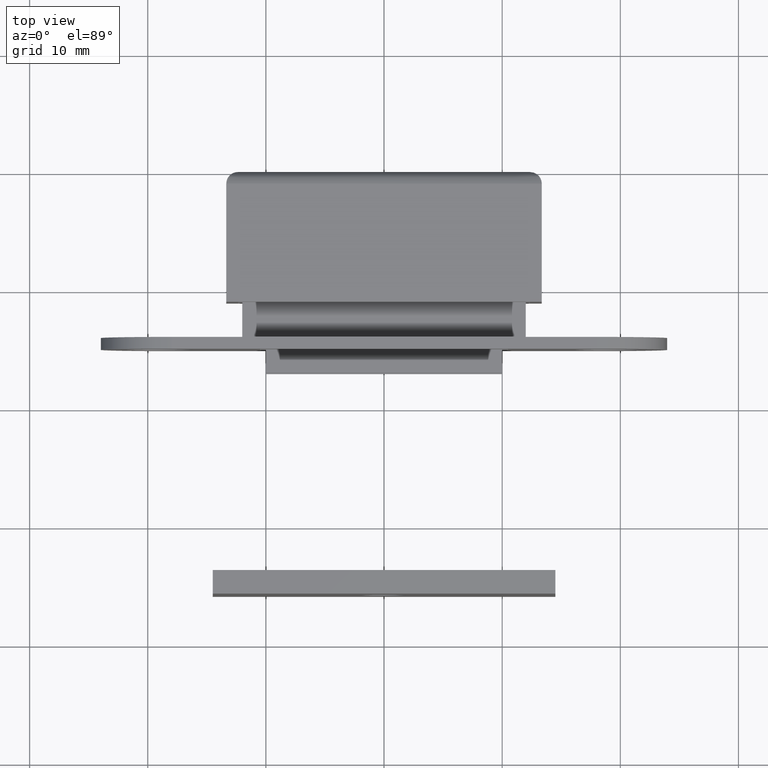
[diagram: clean part render]
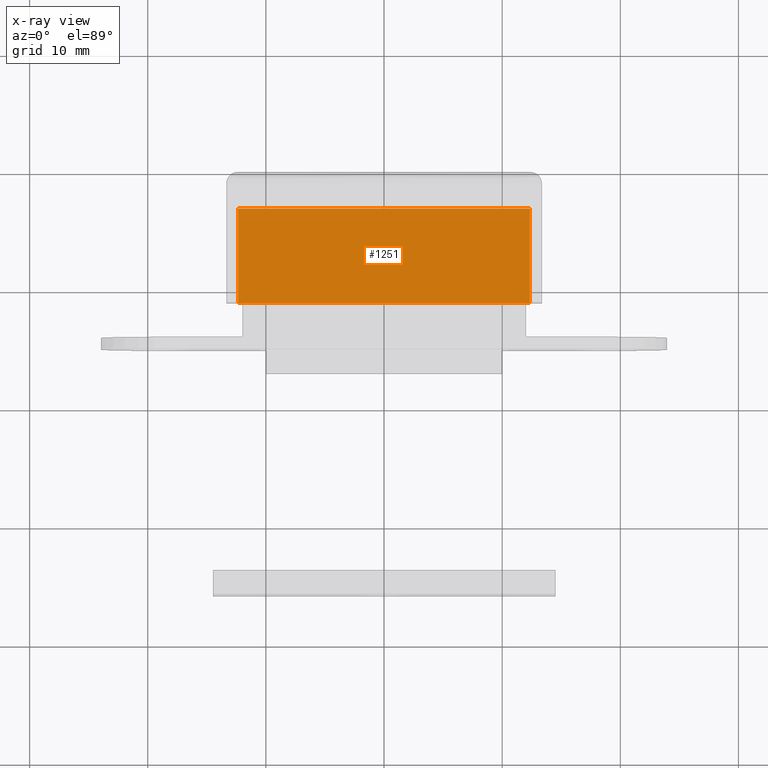
[diagram: x-ray — body ghosted, one internal face saturated and labeled with its STEP entity id]
A machine part, top view, then the same camera in x-ray: the body is ghosted and one INTERNAL B-rep face — a face not visible from any outside direction — is saturated and labeled: STEP entity #1251.
In plain terms, the highlighted face is a freeform B-spline surface patch.
Its self-contained STEP definition (entity closure, byte-faithful):
#1158=CARTESIAN_POINT('',(-12.349999000000000,-2.999991999999795,-2.0));
#1159=VERTEX_POINT('',#1158);
#1165=CARTESIAN_POINT('',(-12.349999000000000,-10.999991999999800,-2.0));
#1166=VERTEX_POINT('',#1165);
#1167=CARTESIAN_POINT('',(-12.349999000000000,-2.999991999999795,-2.0));
#1168=CARTESIAN_POINT('',(-12.349999000000000,-10.999991999999800,-2.0));
#1169=QUASI_UNIFORM_CURVE('',1,(#1167,#1168),.UNSPECIFIED.,.F.,.U.);
#1170=EDGE_CURVE('',#1159,#1166,#1169,.T.);
#1194=CARTESIAN_POINT('',(12.349998000000021,-10.999991999999800,-2.0));
#1195=VERTEX_POINT('',#1194);
#1201=CARTESIAN_POINT('',(12.349998000000021,-2.999991999999795,-2.0));
#1202=VERTEX_POINT('',#1201);
#1203=CARTESIAN_POINT('',(12.349998000000021,-2.999991999999795,-2.0));
#1204=CARTESIAN_POINT('',(12.349998000000021,-10.999991999999800,-2.0));
#1205=QUASI_UNIFORM_CURVE('',1,(#1203,#1204),.UNSPECIFIED.,.F.,.U.);
#1206=EDGE_CURVE('',#1202,#1195,#1205,.T.);
#1222=CARTESIAN_POINT('',(12.349998000000021,-10.999991999999800,-2.0));
#1223=CARTESIAN_POINT('',(-12.349999000000000,-10.999991999999800,-2.0));
#1224=QUASI_UNIFORM_CURVE('',1,(#1222,#1223),.UNSPECIFIED.,.F.,.U.);
#1225=EDGE_CURVE('',#1195,#1166,#1224,.T.);
#1236=CARTESIAN_POINT('',(-13.583763802276611,-11.399591984494251,-2.0));
#1237=CARTESIAN_POINT('',(-13.583763802276611,-2.600391800928626,-2.0));
#1238=CARTESIAN_POINT('',(13.583763464782180,-11.399591984494251,-2.0));
#1239=CARTESIAN_POINT('',(13.583763464782180,-2.600391800928626,-2.0));
#1240=B_SPLINE_SURFACE_WITH_KNOTS('',1,1,((#1236,#1238),(#1237,#1239)),.UNSPECIFIED.,.F.,.F.,.U.,(2,2),(2,2),(0.0,8.799200183565622),(0.0,27.167527267058801),.UNSPECIFIED.);
#1241=ORIENTED_EDGE('',*,*,#1170,.F.);
#1242=CARTESIAN_POINT('',(12.349998000000021,-2.999991999999795,-2.0));
#1243=CARTESIAN_POINT('',(-12.349999000000000,-2.999991999999795,-2.0));
#1244=QUASI_UNIFORM_CURVE('',1,(#1242,#1243),.UNSPECIFIED.,.F.,.U.);
#1245=EDGE_CURVE('',#1202,#1159,#1244,.T.);
#1246=ORIENTED_EDGE('',*,*,#1245,.F.);
#1247=ORIENTED_EDGE('',*,*,#1206,.T.);
#1248=ORIENTED_EDGE('',*,*,#1225,.T.);
#1249=EDGE_LOOP('',(#1241,#1246,#1247,#1248));
#1250=FACE_OUTER_BOUND('',#1249,.T.);
#1251=ADVANCED_FACE('',(#1250),#1240,.T.);